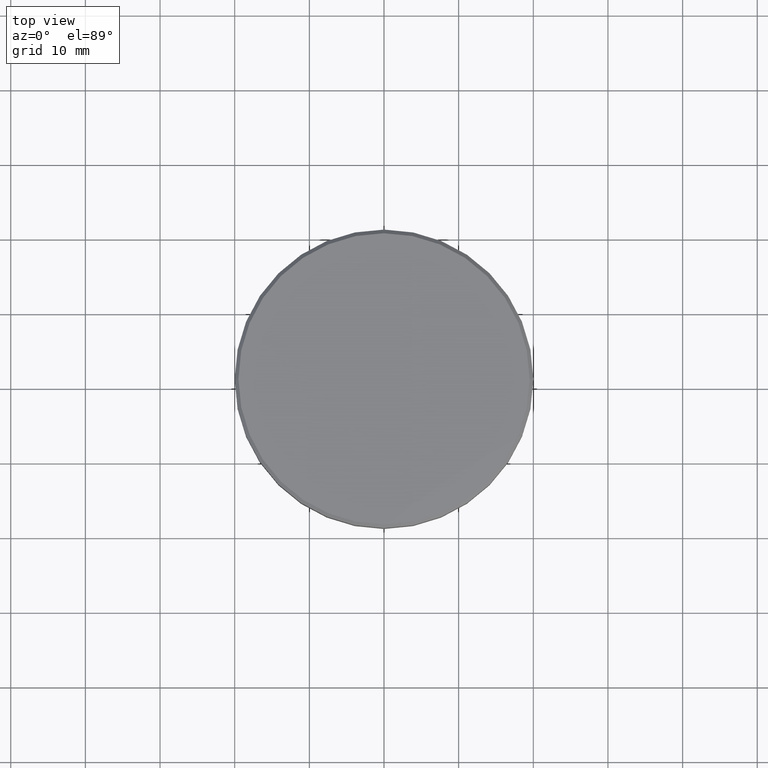
[diagram: clean part render]
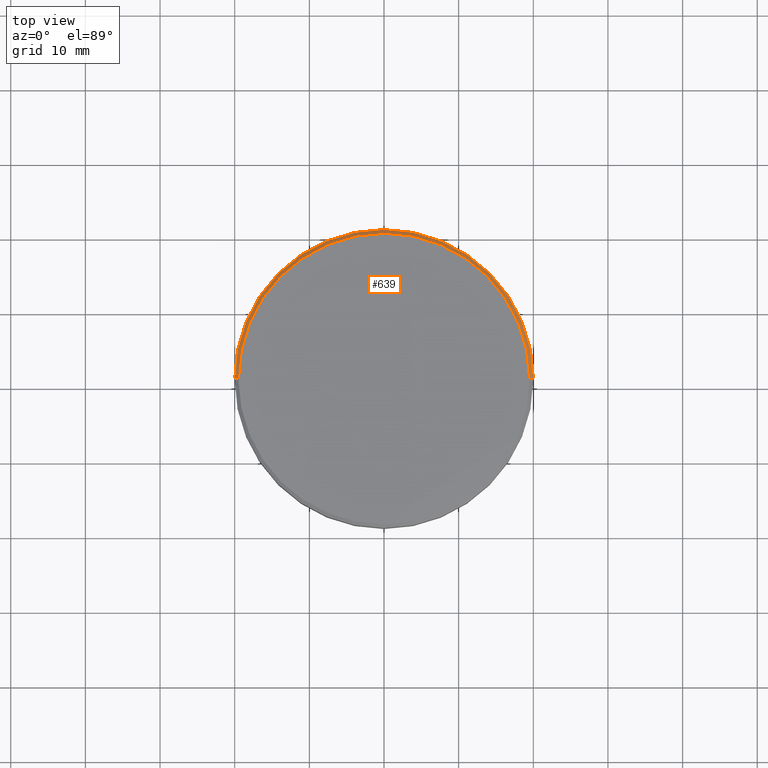
[diagram: same view with one face highlighted and labeled with its STEP entity id]
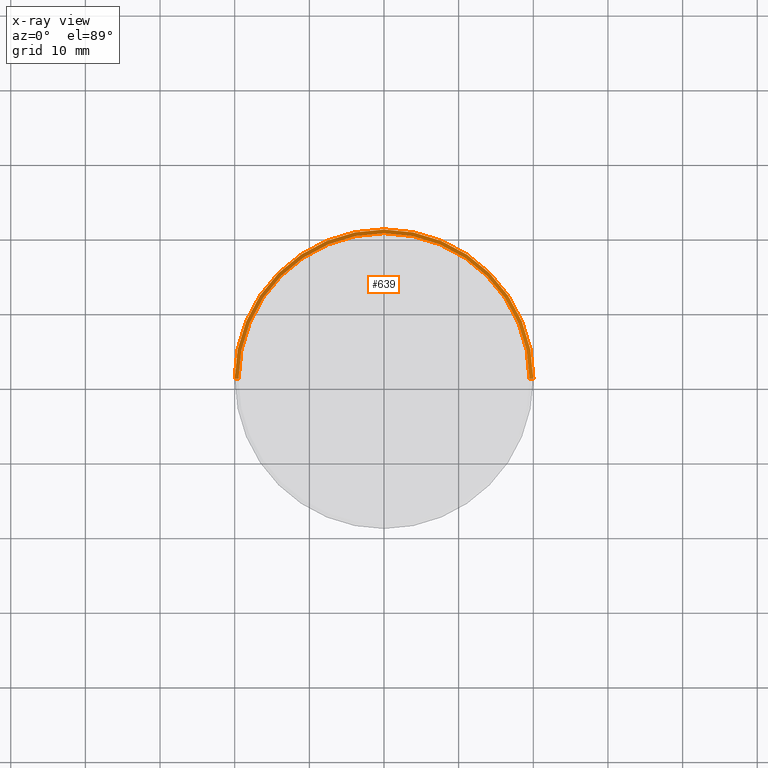
[diagram: x-ray of the same camera — body ghosted, the highlighted face saturated]
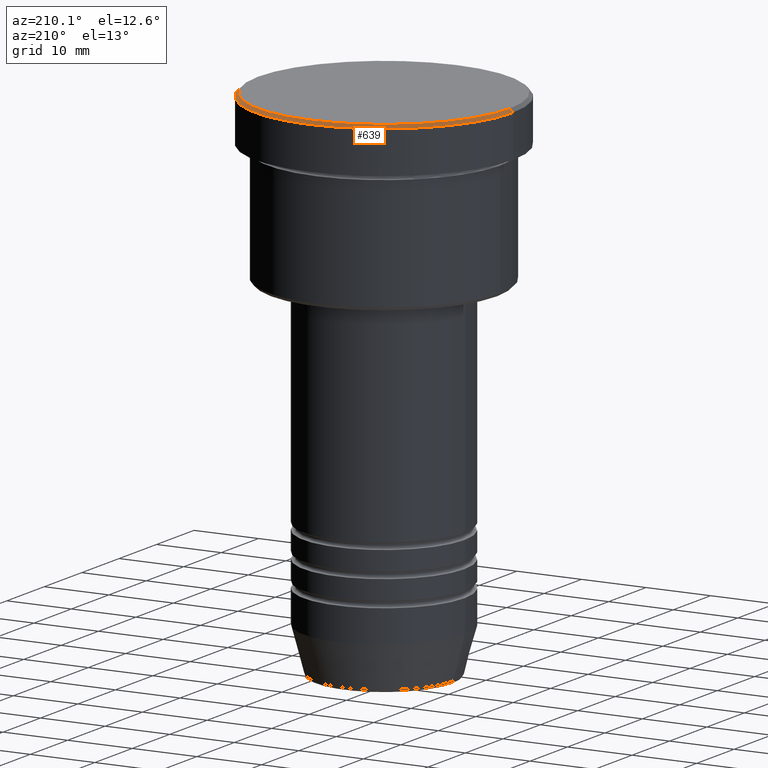
[diagram: same view with one face highlighted and labeled with its STEP entity id]
A machine part, top view. The second image highlights one B-rep face of the part: STEP entity #639.
The next image is the same camera in x-ray: the body ghosted, the highlighted face saturated — about 0% of this face is hidden behind the body in this view.
A second angle (auxiliary view) of the same face is appended — the face is thin or edge-on in the first view.
In plain terms, the highlighted conical surface has half-angle 45 deg.
Its self-contained STEP definition (entity closure, byte-faithful):
#24 = DIRECTION ( 'NONE',  ( -0.7071067811865474617, 0.000000000000000000, -0.7071067811865474617 ) ) ;
#28 = CARTESIAN_POINT ( 'NONE',  ( 19.50000000000000355, 2.418677428316022726E-15, 0.000000000000000000 ) ) ;
#68 = FACE_OUTER_BOUND ( 'NONE', #827, .T. ) ;
#82 = CARTESIAN_POINT ( 'NONE',  ( -20.00000000000000000, 2.449293598294706513E-15, -0.4999999999999970024 ) ) ;
#130 = VERTEX_POINT ( 'NONE', #28 ) ;
#177 = ORIENTED_EDGE ( 'NONE', *, *, #970, .F. ) ;
#255 = VECTOR ( 'NONE', #258, 1000.000000000000114 ) ;
#258 = DIRECTION ( 'NONE',  ( 0.7071067811865474617, 8.659560562354932858E-17, -0.7071067811865474617 ) ) ;
#301 = LINE ( 'NONE', #850, #697 ) ;
#329 = EDGE_CURVE ( 'NONE', #130, #467, #881, .T. ) ;
#366 = DIRECTION ( 'NONE',  ( 1.000000000000000000, 0.000000000000000000, 0.000000000000000000 ) ) ;
#367 = AXIS2_PLACEMENT_3D ( 'NONE', #1173, #719, #366 ) ;
#381 = CARTESIAN_POINT ( 'NONE',  ( -19.50000000000000355, 0.000000000000000000, 0.000000000000000000 ) ) ;
#391 = ORIENTED_EDGE ( 'NONE', *, *, #650, .T. ) ;
#427 = AXIS2_PLACEMENT_3D ( 'NONE', #591, #1010, #1130 ) ;
#438 = CARTESIAN_POINT ( 'NONE',  ( 0.000000000000000000, 0.000000000000000000, 0.000000000000000000 ) ) ;
#467 = VERTEX_POINT ( 'NONE', #381 ) ;
#591 = CARTESIAN_POINT ( 'NONE',  ( 0.000000000000000000, 0.000000000000000000, -0.4999999999999970024 ) ) ;
#639 = ADVANCED_FACE ( 'NONE', ( #68 ), #1082, .T. ) ;
#650 = EDGE_CURVE ( 'NONE', #130, #1025, #1163, .T. ) ;
#697 = VECTOR ( 'NONE', #24, 1000.000000000000114 ) ;
#718 = CARTESIAN_POINT ( 'NONE',  ( 19.50000000000000355, 2.388061258337339333E-15, 0.000000000000000000 ) ) ;
#719 = DIRECTION ( 'NONE',  ( -0.000000000000000000, -0.000000000000000000, 1.000000000000000000 ) ) ;
#731 = CIRCLE ( 'NONE', #427, 20.00000000000000000 ) ;
#784 = VERTEX_POINT ( 'NONE', #82 ) ;
#799 = DIRECTION ( 'NONE',  ( 0.000000000000000000, 0.000000000000000000, -1.000000000000000000 ) ) ;
#827 = EDGE_LOOP ( 'NONE', ( #960, #391, #177, #996 ) ) ;
#846 = CARTESIAN_POINT ( 'NONE',  ( 20.00000000000000000, 0.000000000000000000, -0.4999999999999970024 ) ) ;
#850 = CARTESIAN_POINT ( 'NONE',  ( -19.50000000000000355, 0.000000000000000000, 0.000000000000000000 ) ) ;
#881 = CIRCLE ( 'NONE', #367, 19.50000000000000355 ) ;
#883 = AXIS2_PLACEMENT_3D ( 'NONE', #438, #799, #1155 ) ;
#960 = ORIENTED_EDGE ( 'NONE', *, *, #329, .F. ) ;
#970 = EDGE_CURVE ( 'NONE', #784, #1025, #731, .T. ) ;
#996 = ORIENTED_EDGE ( 'NONE', *, *, #1018, .F. ) ;
#1010 = DIRECTION ( 'NONE',  ( 0.000000000000000000, 0.000000000000000000, -1.000000000000000000 ) ) ;
#1018 = EDGE_CURVE ( 'NONE', #467, #784, #301, .T. ) ;
#1025 = VERTEX_POINT ( 'NONE', #846 ) ;
#1082 = CONICAL_SURFACE ( 'NONE', #883, 19.50000000000000355, 0.7853981633974482790 ) ;
#1130 = DIRECTION ( 'NONE',  ( 1.000000000000000000, 0.000000000000000000, 0.000000000000000000 ) ) ;
#1155 = DIRECTION ( 'NONE',  ( -1.000000000000000000, 0.000000000000000000, 0.000000000000000000 ) ) ;
#1163 = LINE ( 'NONE', #718, #255 ) ;
#1173 = CARTESIAN_POINT ( 'NONE',  ( 0.000000000000000000, 0.000000000000000000, 0.000000000000000000 ) ) ;